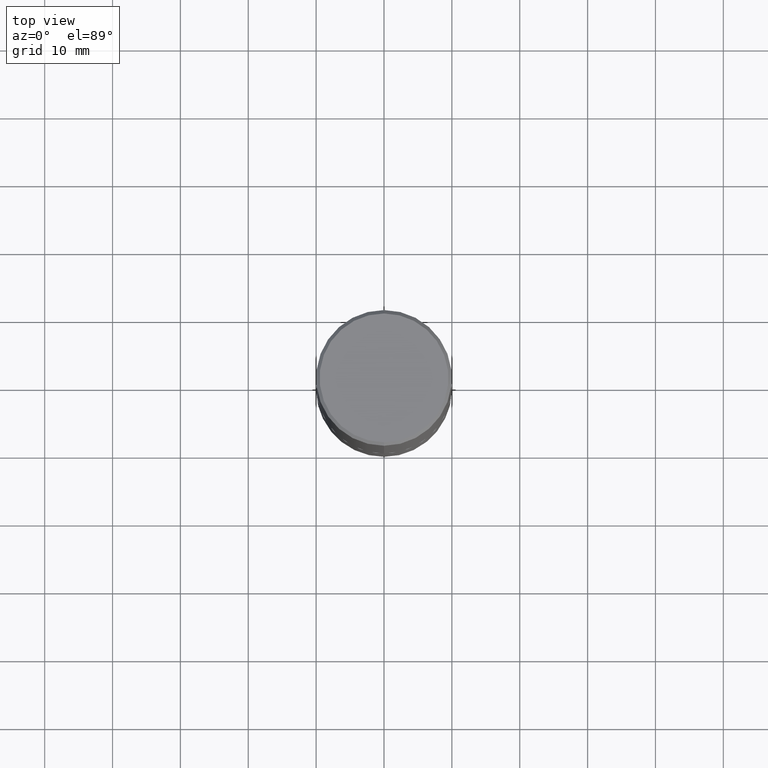
[diagram: clean part render]
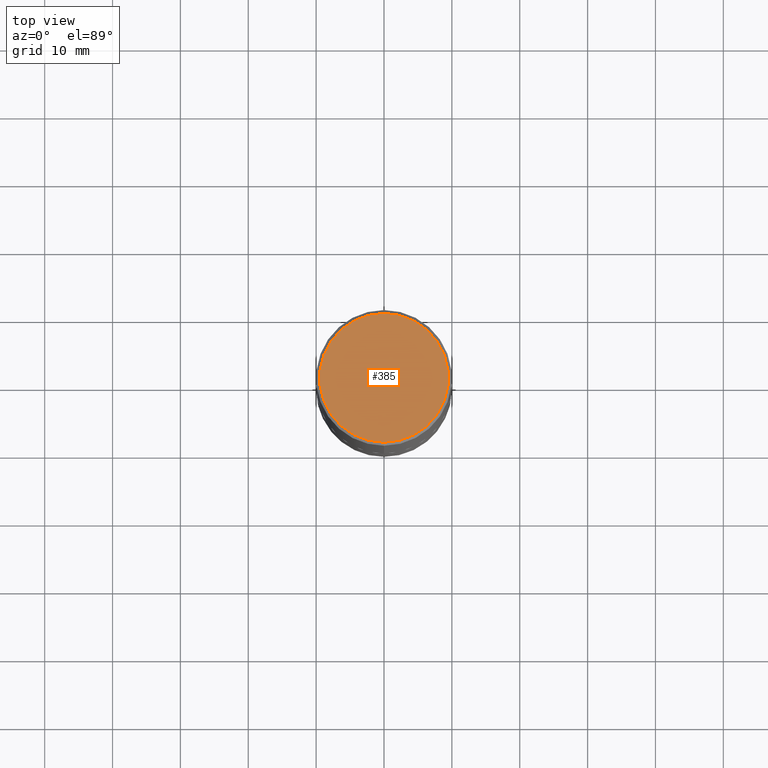
[diagram: same view with one face highlighted and labeled with its STEP entity id]
A machine part, top view. The second image highlights one B-rep face of the part: STEP entity #385.
In plain terms, the highlighted planar face has unit normal (0, -0, -1).
Its self-contained STEP definition (entity closure, byte-faithful):
#3 = ORIENTED_EDGE ( 'NONE', *, *, #97, .T. ) ;
#42 = EDGE_CURVE ( 'NONE', #297, #44, #118, .T. ) ;
#44 = VERTEX_POINT ( 'NONE', #332 ) ;
#68 = CARTESIAN_POINT ( 'NONE',  ( 2.609533152651355437E-15, 0.3736999999999996991, -1.142780237636538570E-15 ) ) ;
#83 = DIRECTION ( 'NONE',  ( -2.444657325249735563E-29, 3.492643425729266472E-15, 1.000000000000000000 ) ) ;
#97 = EDGE_CURVE ( 'NONE', #44, #297, #185, .T. ) ;
#104 = ORIENTED_EDGE ( 'NONE', *, *, #42, .T. ) ;
#118 = CIRCLE ( 'NONE', #353, 0.3736999999999996991 ) ;
#142 = AXIS2_PLACEMENT_3D ( 'NONE', #68, #214, #157 ) ;
#144 = AXIS2_PLACEMENT_3D ( 'NONE', #334, #83, #145 ) ;
#145 = DIRECTION ( 'NONE',  ( -6.982962677686265922E-15, -1.000000000000000000, 3.492643425729266867E-15 ) ) ;
#147 = FACE_OUTER_BOUND ( 'NONE', #231, .T. ) ;
#157 = DIRECTION ( 'NONE',  ( 6.982962677686265922E-15, 1.000000000000000000, -3.492643425729266472E-15 ) ) ;
#185 = CIRCLE ( 'NONE', #144, 0.3736999999999996991 ) ;
#188 = CARTESIAN_POINT ( 'NONE',  ( 2.679362779428219524E-15, 0.3736999999999996991, -9.803596270780512067E-16 ) ) ;
#214 = DIRECTION ( 'NONE',  ( 2.444657325249735282E-29, -3.492643425729266472E-15, -1.000000000000000000 ) ) ;
#231 = EDGE_LOOP ( 'NONE', ( #104, #3 ) ) ;
#267 = CARTESIAN_POINT ( 'NONE',  ( -7.941254707466810248E-45, 1.134554555340068296E-30, 3.248412211169746281E-16 ) ) ;
#269 = DIRECTION ( 'NONE',  ( -2.444657325249735563E-29, 3.492643425729266472E-15, 1.000000000000000000 ) ) ;
#297 = VERTEX_POINT ( 'NONE', #188 ) ;
#310 = DIRECTION ( 'NONE',  ( -6.982962677686265922E-15, -1.000000000000000000, 3.492643425729266867E-15 ) ) ;
#332 = CARTESIAN_POINT ( 'NONE',  ( -2.632373081744935132E-15, -0.3736999999999996991, 1.630042069312000463E-15 ) ) ;
#334 = CARTESIAN_POINT ( 'NONE',  ( -7.941254707466810248E-45, 1.134554555340068296E-30, 3.248412211169746281E-16 ) ) ;
#353 = AXIS2_PLACEMENT_3D ( 'NONE', #267, #269, #310 ) ;
#384 = PLANE ( 'NONE',  #142 ) ;
#385 = ADVANCED_FACE ( 'NONE', ( #147 ), #384, .F. ) ;